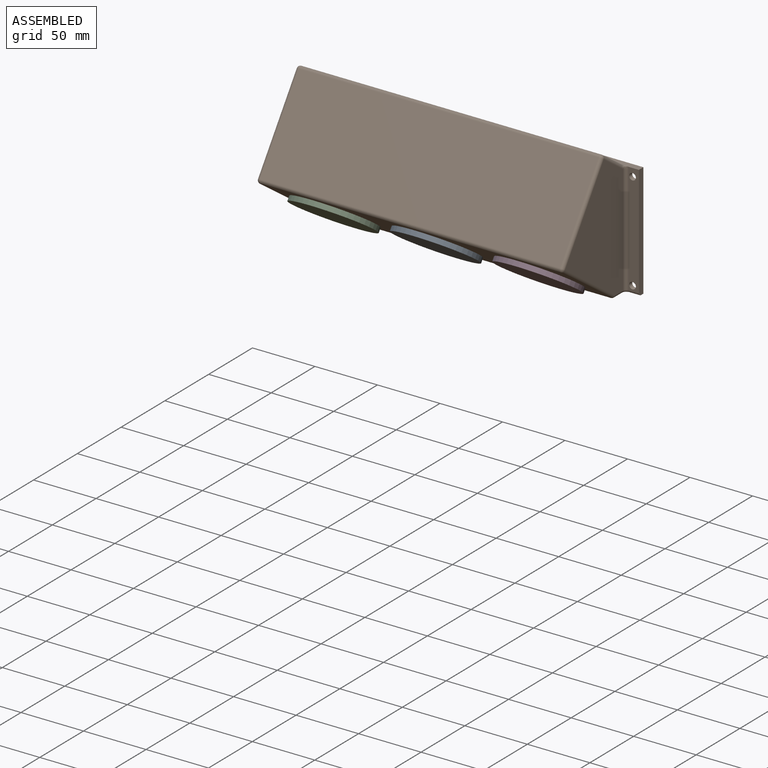
[diagram: assembled view]
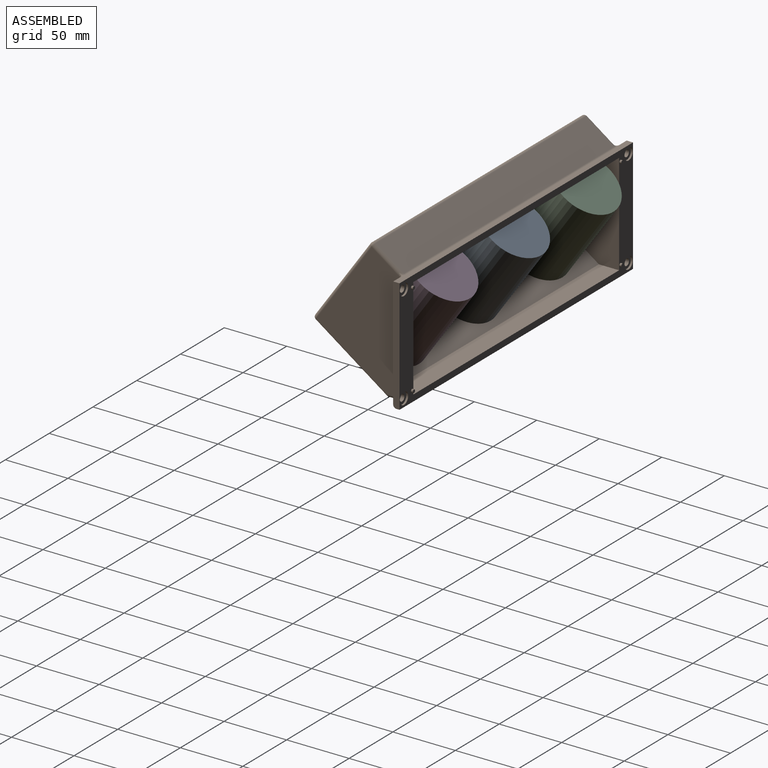
[diagram: assembled view, second angle]
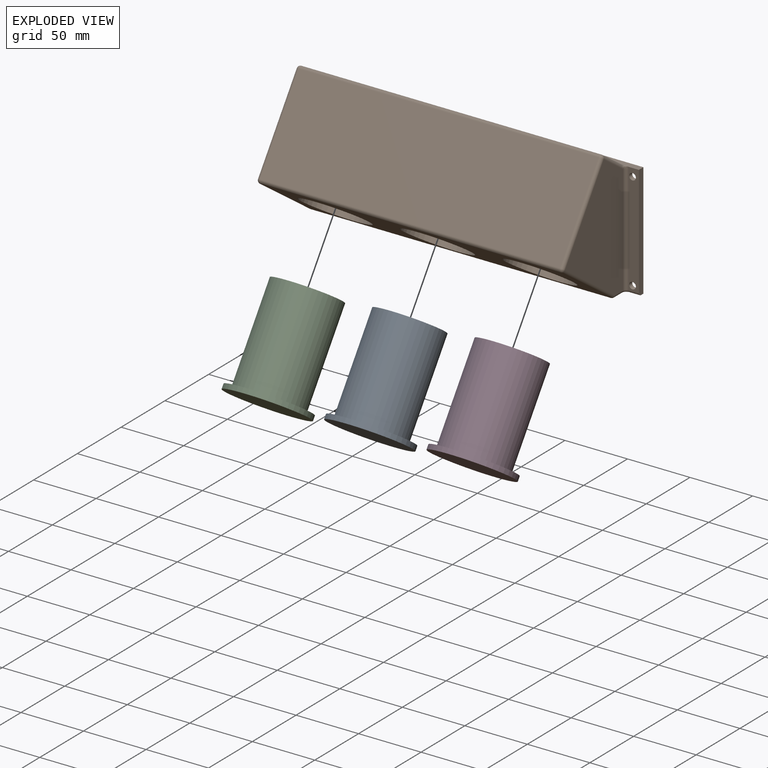
[diagram: exploded view]
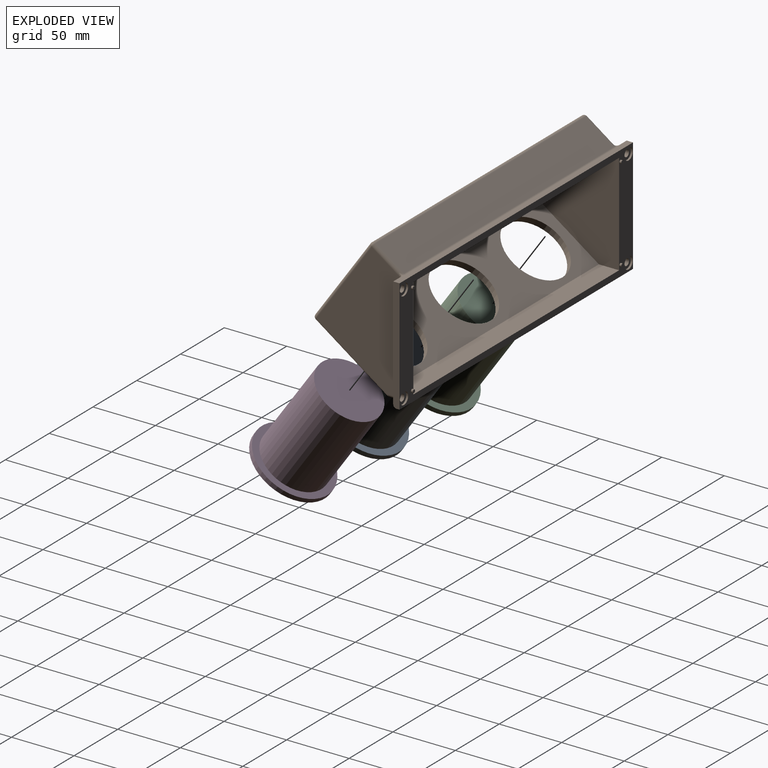
[diagram: exploded view, second angle]
ASSEMBLY  parts=4 mates=4
PART A: 5 faces, bbox 63.5x63.5x80 mm
  f0: plane 52.32x52.32mm, normal (0,0,-1), area 2150.3mm2, adj f1
  f1: cylinder r=26.16mm len=76.2mm, axis (0,0,-1), area 12525.8mm2, adj f0,f2
  f2: plane 63.5x63.5mm, normal (0,0,-1), area 1016.7mm2, adj f1,f3
  f3: cylinder r=31.75mm len=63.5mm, axis (0,0,-1), area 760.1mm2, adj f2,f4
  f4: plane 63.5x63.5mm, normal (0,0,1), area 3166.9mm2, adj f3
PART B: 70 faces, bbox 266.8x78.3x108.4 mm
  f0: plane 88.9x8.37mm, normal (0,-1,0), area 689.2mm2, adj f1,f4,f36,f39,f43,f44,f45
  f1: plane 266.84x6.11mm, normal (0,0,1), area 1162.1mm2, adj f0,f2,f4,f5,f6,f45,f50,f56
  f2: plane 91.44x5.08mm, normal (-1,0,0), area 463.1mm2, adj f1,f3,f5,f6,f69
  f3: plane 266.7x16.98mm, normal (0,0,-1), area 4154.3mm2, adj f2,f4,f6,f44,f49,f55,f63,f67
  f4: plane 91.44x5.08mm, normal (1,0,0), area 463.1mm2, adj f0,f1,f3,f6,f44
  f5: plane 88.9x8.37mm, normal (0,-1,0), area 689.2mm2, adj f1,f2,f30,f33,f64,f66,f69
  f6: plane 266.7x91.44mm, normal (0,1,0), area 4985mm2, adj f1,f2,f3,f4,f12,f13,f17,f18
  f7: plane 240.03x57.08mm, normal (0,-0.57,-0.82), area 10259.8mm2, adj f19,f20,f21,f53,f54,f62,f63
  f8: plane 240.03x22.64mm, normal (0,0.57,0.82), area 6634.3mm2, adj f46,f51,f56,f61
  f9: plane 240.03x63.16mm, normal (0,-0.82,0.57), area 18508.2mm2, adj f42,f51,f52,f53
  f10: plane 103.13x66.44mm, normal (1,0,0), area 4141.9mm2, adj f42,f43,f46,f54,f55
  f11: plane 103.13x66.44mm, normal (-1,0,0), area 4141.9mm2, adj f52,f61,f62,f66,f67
  f12: plane 234.95x6.68mm, normal (0,0,-1), area 1569.9mm2, adj f6,f15,f17,f18
  f13: plane 234.95x16.18mm, normal (0,0,1), area 3801.1mm2, adj f6,f14,f17,f18
  f14: plane 234.95x54.35mm, normal (0,0.57,0.82), area 9120.9mm2, adj f13,f16,f17,f18,f19,f20,f21
  f15: plane 234.95x22.53mm, normal (0,-0.57,-0.82), area 6461.6mm2, adj f12,f16,f17,f18
  f16: plane 234.95x59mm, normal (0,0.82,-0.57), area 16922.9mm2, adj f14,f15,f17,f18
  f17: plane 97.05x70.52mm, normal (-1,0,0), area 4308.8mm2, adj f6,f12,f13,f14,f15,f16
  f18: plane 97.05x70.52mm, normal (1,0,0), area 4308.8mm2, adj f6,f12,f13,f14,f15,f16
  f19: cylinder r=26.19mm len=52.39mm, axis (0,-0.57,-0.82), area 836.1mm2, adj f7,f14
  f20: cylinder r=26.19mm len=52.39mm, axis (0,-0.57,-0.82), area 836.1mm2, adj f7,f14
  f21: cylinder r=26.19mm len=52.39mm, axis (0,-0.57,-0.82), area 836.1mm2, adj f7,f14
  f22: cylinder r=1.27mm len=2.54mm, axis (0,-1,0), area 12.2mm2, adj f6,f23
  f23: plane 2.54x2.54mm, normal (0,1,0), area 5.1mm2, adj f22
  f24: cylinder r=1.27mm len=2.54mm, axis (0,-1,0), area 12.2mm2, adj f6,f25
  f25: plane 2.54x2.54mm, normal (0,1,0), area 5.1mm2, adj f24
  f26: cylinder r=1.27mm len=2.54mm, axis (0,-1,0), area 12.2mm2, adj f6,f27
  f27: plane 2.54x2.54mm, normal (0,1,0), area 5.1mm2, adj f26
  f28: cylinder r=1.27mm len=2.54mm, axis (0,-1,0), area 12.2mm2, adj f6,f29
  f29: plane 2.54x2.54mm, normal (0,1,0), area 5.1mm2, adj f28
  f30: cylinder r=2.67mm len=5.33mm, axis (0,1,0), area 59.6mm2, adj f5,f31
  f31: plane 9.53x9.53mm, normal (0,1,0), area 48.9mm2, adj f30,f32
  f32: cylinder r=4.76mm len=9.53mm, axis (0,1,0), area 45.6mm2, adj f6,f31
  f33: cylinder r=2.67mm len=5.33mm, axis (0,1,0), area 59.6mm2, adj f5,f34
  f34: plane 9.53x9.53mm, normal (0,1,0), area 48.9mm2, adj f33,f35
  f35: cylinder r=4.76mm len=9.53mm, axis (0,1,0), area 45.6mm2, adj f6,f34
  f36: cylinder r=2.67mm len=5.33mm, axis (0,1,0), area 59.6mm2, adj f0,f37
  f37: plane 9.53x9.53mm, normal (0,1,0), area 48.9mm2, adj f36,f38
  f38: cylinder r=4.76mm len=9.53mm, axis (0,1,0), area 45.6mm2, adj f6,f37
  f39: cylinder r=2.67mm len=5.33mm, axis (0,1,0), area 59.6mm2, adj f0,f40
  f40: plane 9.53x9.53mm, normal (0,1,0), area 48.9mm2, adj f39,f41
  f41: cylinder r=4.76mm len=9.53mm, axis (0,1,0), area 45.6mm2, adj f6,f40
  f42: cylinder r=2.54mm len=64.62mm, axis (0,0.57,0.82), area 307.6mm2, adj f9,f10,f47,f48
  f43: cylinder r=2.54mm len=87.58mm, axis (0,0,1), area 349.4mm2, adj f0,f10,f45,f49
  f44: cylinder r=2.54mm len=8.26mm, axis (-1,0,0), area 32.9mm2, adj f0,f3,f4,f49
  f45: bspline ~4.85x4.6mm, area 7.1mm2, adj f0,f1,f43,f46,f50
  f46: cylinder r=2.54mm len=24.1mm, axis (0,0.82,-0.57), area 104.4mm2, adj f8,f10,f45,f47,f50
  f47: sphere r=2.54mm, area 13.8mm2, adj f42,f46,f51
  f48: sphere r=2.54mm, area 6.5mm2, adj f42,f53,f54
  f49: torus R=5.08mm, axis (0,0,1), area 21.7mm2, adj f3,f43,f44,f55
  f50: bspline ~4.61x4.17mm, area 6.8mm2, adj f1,f45,f46,f56
  f51: cylinder r=2.54mm len=240.03mm, axis (1,0,0), area 957.7mm2, adj f8,f9,f47,f57
  f52: cylinder r=2.54mm len=64.62mm, axis (0,-0.57,-0.82), area 307.6mm2, adj f9,f11,f57,f58
  f53: cylinder r=2.54mm len=240.03mm, axis (-1,0,0), area 957.7mm2, adj f7,f9,f48,f58
  f54: cylinder r=2.54mm len=58.54mm, axis (0,-0.82,0.57), area 278mm2, adj f7,f10,f48,f59
  f55: cylinder r=2.54mm len=9.36mm, axis (0,1,0), area 37.3mm2, adj f3,f10,f49,f59
  f56: cylinder r=2.54mm len=240.03mm, axis (-1,0,0), area 372.4mm2, adj f1,f8,f50,f60
  f57: sphere r=2.54mm, area 10.1mm2, adj f51,f52,f61
  f58: sphere r=2.54mm, area 10.1mm2, adj f52,f53,f62
  f59: sphere r=2.54mm, area 3.9mm2, adj f54,f55,f63
  f60: bspline ~5.05x4.61mm, area 6.8mm2, adj f1,f56,f61,f64
  f61: cylinder r=2.54mm len=24.1mm, axis (0,-0.82,0.57), area 104.4mm2, adj f8,f11,f57,f60,f64
  f62: cylinder r=2.54mm len=58.54mm, axis (0,0.82,-0.57), area 278mm2, adj f7,f11,f58,f65
  f63: cylinder r=2.54mm len=240.03mm, axis (1,0,0), area 372.4mm2, adj f3,f7,f59,f65
  f64: bspline ~5.65x4.6mm, area 7.1mm2, adj f1,f5,f60,f61,f66
  f65: sphere r=2.54mm, area 3.9mm2, adj f62,f63,f67
  f66: cylinder r=2.54mm len=87.58mm, axis (0,0,-1), area 349.4mm2, adj f5,f11,f64,f68
  f67: cylinder r=2.54mm len=9.36mm, axis (0,-1,0), area 37.3mm2, adj f3,f11,f65,f68
  f68: torus R=5.08mm, axis (0,0,1), area 21.7mm2, adj f3,f66,f67,f69
  f69: cylinder r=2.54mm len=8.26mm, axis (-1,0,0), area 32.9mm2, adj f2,f3,f5,f68
PART C: same geometry as A
PART D: same geometry as A
PLACE A rot(axis=(1,0,0),145deg) t=(-34.03,-28.64,-29.23)mm
PLACE B t=(-34.03,4.89,-18.59)mm
PLACE C rot(axis=(1,0,0),145deg) t=(-115.95,-28.64,-29.23)mm
PLACE D rot(axis=(1,0,0),145deg) t=(47.88,-28.64,-29.23)mm
MATE planar D.f1 <-> B.f7  axis (0,0.57,0.82) through (47.88,-39.94,-45.37)mm
MATE fastened C.f1 <-> B.f21  axis (0,0.57,0.82) through (-115.95,-39.94,-45.37)mm
MATE fastened D.f1 <-> B.f19  axis (0,0.57,0.82) through (47.88,-39.94,-45.37)mm
MATE fastened A.f1 <-> B.f20  axis (0,0.57,0.82) through (-34.03,-39.94,-45.37)mm
